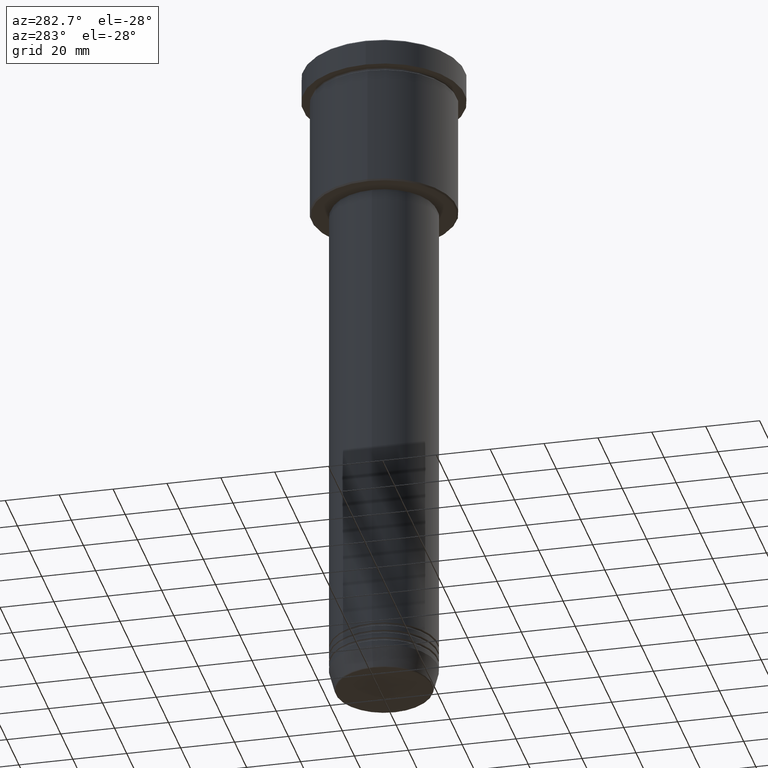
[diagram: clean part render]
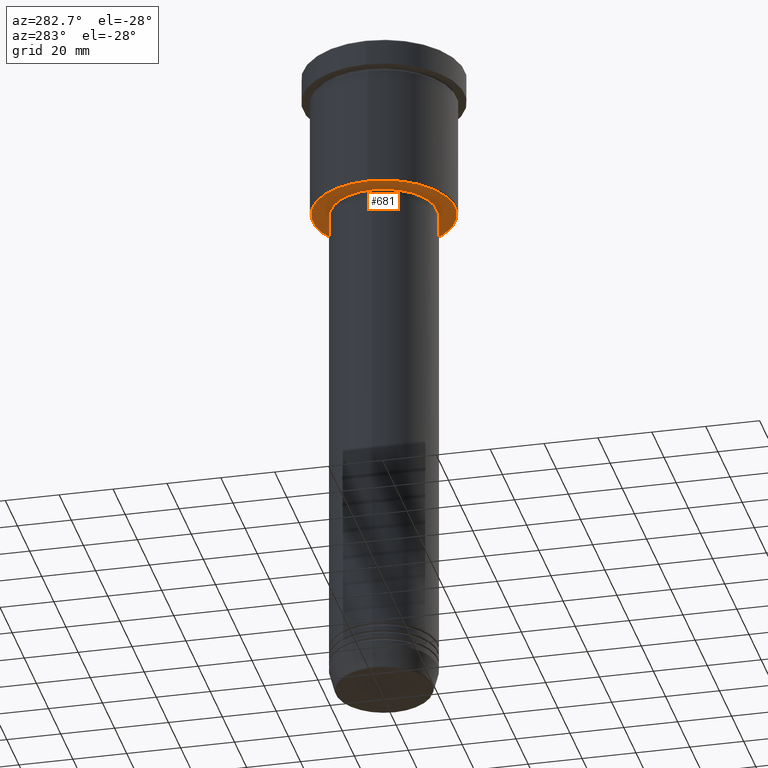
[diagram: same view with one face highlighted and labeled with its STEP entity id]
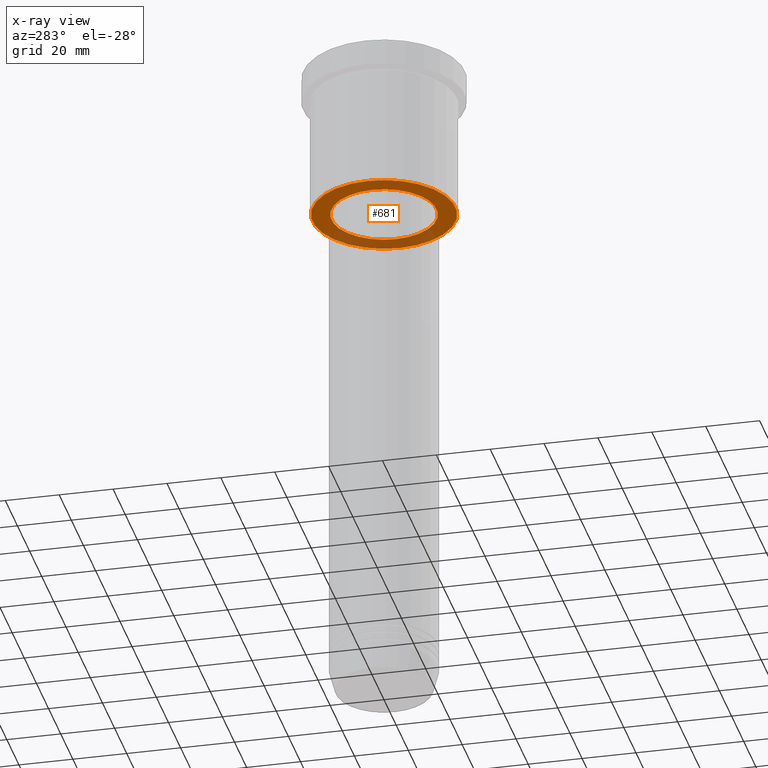
[diagram: x-ray of the same camera — body ghosted, the highlighted face saturated]
A machine part, auxiliary view. The second image highlights one B-rep face of the part: STEP entity #681.
The next image is the same camera in x-ray: the body ghosted, the highlighted face saturated — about 28% of this face is hidden behind the body in this view.
In plain terms, the highlighted planar face has unit normal (0, 0, -1).
Its self-contained STEP definition (entity closure, byte-faithful):
#13 = DIRECTION ( 'NONE',  ( 0.000000000000000000, 0.000000000000000000, -1.000000000000000000 ) ) ;
#53 = AXIS2_PLACEMENT_3D ( 'NONE', #1144, #226, #355 ) ;
#62 = ORIENTED_EDGE ( 'NONE', *, *, #752, .T. ) ;
#100 = CARTESIAN_POINT ( 'NONE',  ( -26.50000000000002487, 3.275930187719171524E-15, -55.99999999999999289 ) ) ;
#107 = AXIS2_PLACEMENT_3D ( 'NONE', #427, #702, #520 ) ;
#167 = CARTESIAN_POINT ( 'NONE',  ( 19.50000000000000000, 0.000000000000000000, -55.99999999999999289 ) ) ;
#175 = ORIENTED_EDGE ( 'NONE', *, *, #283, .T. ) ;
#192 = DIRECTION ( 'NONE',  ( 1.000000000000000000, 0.000000000000000000, 0.000000000000000000 ) ) ;
#210 = DIRECTION ( 'NONE',  ( -0.000000000000000000, -0.000000000000000000, 1.000000000000000000 ) ) ;
#226 = DIRECTION ( 'NONE',  ( 0.000000000000000000, 0.000000000000000000, -1.000000000000000000 ) ) ;
#236 = AXIS2_PLACEMENT_3D ( 'NONE', #725, #13, #748 ) ;
#244 = AXIS2_PLACEMENT_3D ( 'NONE', #1159, #210, #1152 ) ;
#283 = EDGE_CURVE ( 'NONE', #910, #888, #1135, .T. ) ;
#314 = EDGE_LOOP ( 'NONE', ( #62, #1166 ) ) ;
#351 = EDGE_LOOP ( 'NONE', ( #175, #916 ) ) ;
#355 = DIRECTION ( 'NONE',  ( -1.000000000000000000, 0.000000000000000000, -0.000000000000000000 ) ) ;
#397 = CARTESIAN_POINT ( 'NONE',  ( 26.50000000000002487, 0.000000000000000000, -55.99999999999999289 ) ) ;
#420 = FACE_BOUND ( 'NONE', #351, .T. ) ;
#427 = CARTESIAN_POINT ( 'NONE',  ( 0.000000000000000000, 0.000000000000000000, -55.99999999999999289 ) ) ;
#428 = CIRCLE ( 'NONE', #1017, 19.50000000000000000 ) ;
#470 = CIRCLE ( 'NONE', #236, 26.50000000000002487 ) ;
#490 = CARTESIAN_POINT ( 'NONE',  ( -19.50000000000000000, 2.388061258337338939E-15, -55.99999999999999289 ) ) ;
#491 = VERTEX_POINT ( 'NONE', #100 ) ;
#520 = DIRECTION ( 'NONE',  ( -1.000000000000000000, 0.000000000000000000, 0.000000000000000000 ) ) ;
#586 = DIRECTION ( 'NONE',  ( -0.000000000000000000, -0.000000000000000000, 1.000000000000000000 ) ) ;
#676 = CIRCLE ( 'NONE', #107, 26.50000000000002487 ) ;
#681 = ADVANCED_FACE ( 'NONE', ( #689, #420 ), #781, .T. ) ;
#689 = FACE_OUTER_BOUND ( 'NONE', #314, .T. ) ;
#690 = VERTEX_POINT ( 'NONE', #397 ) ;
#702 = DIRECTION ( 'NONE',  ( 0.000000000000000000, 0.000000000000000000, -1.000000000000000000 ) ) ;
#725 = CARTESIAN_POINT ( 'NONE',  ( 0.000000000000000000, 0.000000000000000000, -55.99999999999999289 ) ) ;
#748 = DIRECTION ( 'NONE',  ( -1.000000000000000000, 0.000000000000000000, 0.000000000000000000 ) ) ;
#752 = EDGE_CURVE ( 'NONE', #690, #491, #470, .T. ) ;
#781 = PLANE ( 'NONE',  #53 ) ;
#806 = EDGE_CURVE ( 'NONE', #491, #690, #676, .T. ) ;
#854 = CARTESIAN_POINT ( 'NONE',  ( 0.000000000000000000, 0.000000000000000000, -55.99999999999999289 ) ) ;
#888 = VERTEX_POINT ( 'NONE', #490 ) ;
#910 = VERTEX_POINT ( 'NONE', #167 ) ;
#916 = ORIENTED_EDGE ( 'NONE', *, *, #1148, .T. ) ;
#1017 = AXIS2_PLACEMENT_3D ( 'NONE', #854, #586, #192 ) ;
#1135 = CIRCLE ( 'NONE', #244, 19.50000000000000000 ) ;
#1144 = CARTESIAN_POINT ( 'NONE',  ( 0.000000000000000000, 27.00000000000000355, -55.99999999999999289 ) ) ;
#1148 = EDGE_CURVE ( 'NONE', #888, #910, #428, .T. ) ;
#1152 = DIRECTION ( 'NONE',  ( 1.000000000000000000, 0.000000000000000000, 0.000000000000000000 ) ) ;
#1159 = CARTESIAN_POINT ( 'NONE',  ( 0.000000000000000000, 0.000000000000000000, -55.99999999999999289 ) ) ;
#1166 = ORIENTED_EDGE ( 'NONE', *, *, #806, .T. ) ;